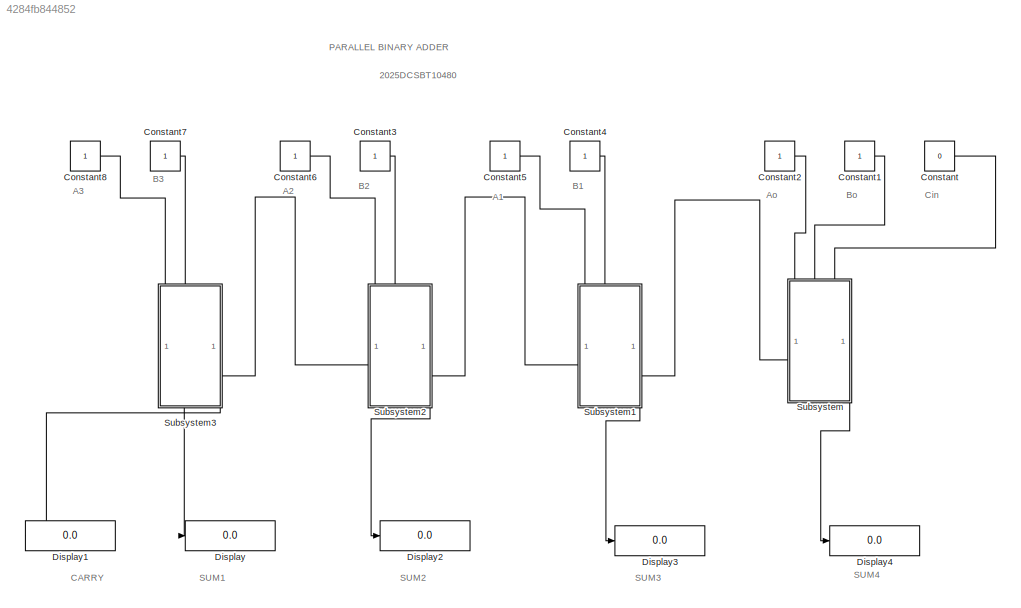
MODEL slx_4284fb844852
KIND model
CONFIG AbsTol = auto
CONFIG EnableMultiTasking = off
CONFIG FixedStep = auto
CONFIG MaxStep = auto
CONFIG MinStep = auto
CONFIG RelTol = 1e-3
CONFIG SampleTimeConstraint = Unconstrained
CONFIG SolverName = VariableStepAuto
CONFIG StartTime = 0.0
CONFIG StopTime = 10.0
BLOCK [Constant] Constant
  Value = 0
BLOCK [Constant] Constant1
BLOCK [Constant] Constant2
BLOCK [Constant] Constant3
BLOCK [Constant] Constant4
BLOCK [Constant] Constant5
BLOCK [Constant] Constant6
BLOCK [Constant] Constant7
BLOCK [Constant] Constant8
BLOCK [Display] Display
  Decimation = 1
BLOCK [Display] Display1
  Decimation = 1
BLOCK [Display] Display2
  Decimation = 1
BLOCK [Display] Display3
  Decimation = 1
BLOCK [Display] Display4
  Decimation = 1
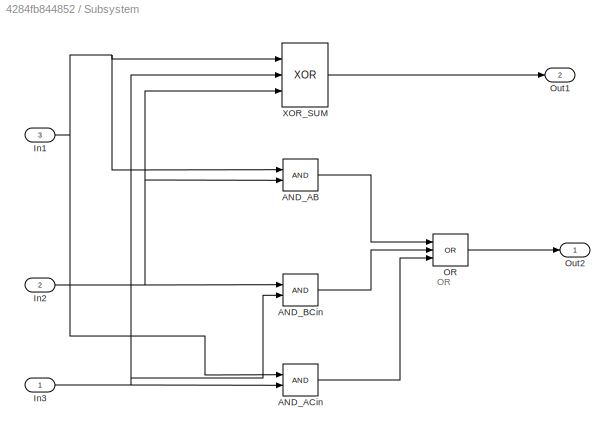
BLOCK [SubSystem] Subsystem
  PortSchema = {"entries":[{"content":{"sides":[{"content":{},"type":"ConnectorPlacement.EquallySpacedRectSide","uuid":"108d892a-8720-40a2-8c7e-3ae5f46a708e"},{"content":{"side":"RIGHT"},"type":"ConnectorPlacement.EquallySpacedRectSide","uuid":"3570579f-a2bf-462b-b3db-0cdd64646b39"},{"content":{"connectorIds":["In1","In2","In3"],"side":"TOP"},"type":"ConnectorPlacement.EquallySpacedRectSide","uuid":"4551d649-747...<+368ch>  <repeated x4 — deduplicated; at blocks: Subsystem, Subsystem1, Subsystem2, Subsystem3>
BLOCK [Logic] Subsystem/AND_AB 
  AllPortsSameDT = off
  IconShape = distinctive
  OutDataTypeStr = boolean
BLOCK [Logic] Subsystem/AND_ACin
  AllPortsSameDT = off
  IconShape = distinctive
  OutDataTypeStr = boolean
BLOCK [Logic] Subsystem/AND_BCin
  AllPortsSameDT = off
  IconShape = distinctive
  OutDataTypeStr = boolean
BLOCK [Inport] Subsystem/In1
  Port = 3
BLOCK [Inport] Subsystem/In2
  Port = 2
BLOCK [Inport] Subsystem/In3
BLOCK [Logic] Subsystem/OR
  AllPortsSameDT = off
  IconShape = distinctive
  Inputs = 3
  Operator = OR
  OutDataTypeStr = boolean
BLOCK [Outport] Subsystem/Out1
  Port = 2
BLOCK [Outport] Subsystem/Out2
BLOCK [Logic] Subsystem/XOR_SUM
  AllPortsSameDT = off
  IconShape = distinctive
  Inputs = 3
  Operator = XOR
  OutDataTypeStr = boolean
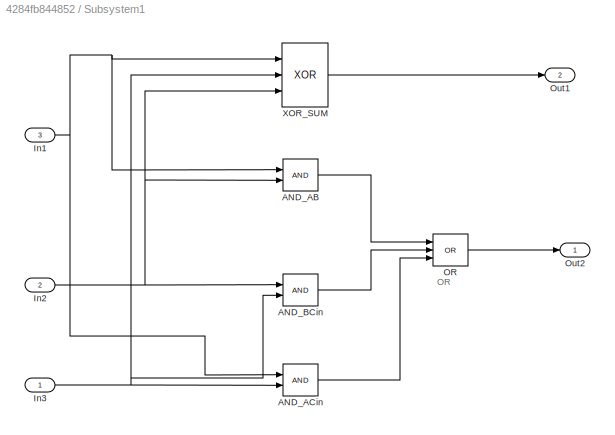
BLOCK [SubSystem] Subsystem1
BLOCK [Logic] Subsystem1/AND_AB 
  AllPortsSameDT = off
  IconShape = distinctive
  OutDataTypeStr = boolean
BLOCK [Logic] Subsystem1/AND_ACin
  AllPortsSameDT = off
  IconShape = distinctive
  OutDataTypeStr = boolean
BLOCK [Logic] Subsystem1/AND_BCin
  AllPortsSameDT = off
  IconShape = distinctive
  OutDataTypeStr = boolean
BLOCK [Inport] Subsystem1/In1
  Port = 3
BLOCK [Inport] Subsystem1/In2
  Port = 2
BLOCK [Inport] Subsystem1/In3
BLOCK [Logic] Subsystem1/OR
  AllPortsSameDT = off
  IconShape = distinctive
  Inputs = 3
  Operator = OR
  OutDataTypeStr = boolean
BLOCK [Outport] Subsystem1/Out1
  Port = 2
BLOCK [Outport] Subsystem1/Out2
BLOCK [Logic] Subsystem1/XOR_SUM
  AllPortsSameDT = off
  IconShape = distinctive
  Inputs = 3
  Operator = XOR
  OutDataTypeStr = boolean
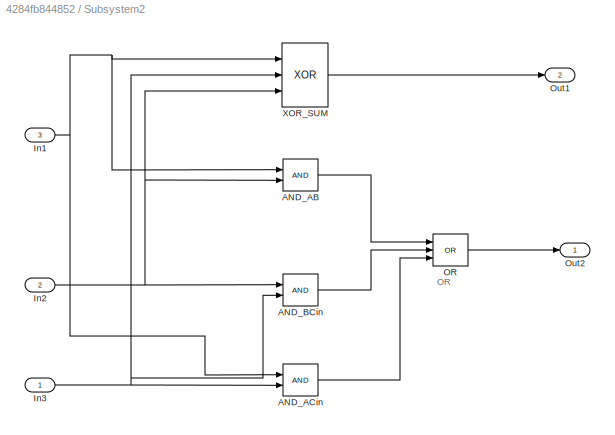
BLOCK [SubSystem] Subsystem2
BLOCK [Logic] Subsystem2/AND_AB 
  AllPortsSameDT = off
  IconShape = distinctive
  OutDataTypeStr = boolean
BLOCK [Logic] Subsystem2/AND_ACin
  AllPortsSameDT = off
  IconShape = distinctive
  OutDataTypeStr = boolean
BLOCK [Logic] Subsystem2/AND_BCin
  AllPortsSameDT = off
  IconShape = distinctive
  OutDataTypeStr = boolean
BLOCK [Inport] Subsystem2/In1
  Port = 3
BLOCK [Inport] Subsystem2/In2
  Port = 2
BLOCK [Inport] Subsystem2/In3
BLOCK [Logic] Subsystem2/OR
  AllPortsSameDT = off
  IconShape = distinctive
  Inputs = 3
  Operator = OR
  OutDataTypeStr = boolean
BLOCK [Outport] Subsystem2/Out1
  Port = 2
BLOCK [Outport] Subsystem2/Out2
BLOCK [Logic] Subsystem2/XOR_SUM
  AllPortsSameDT = off
  IconShape = distinctive
  Inputs = 3
  Operator = XOR
  OutDataTypeStr = boolean
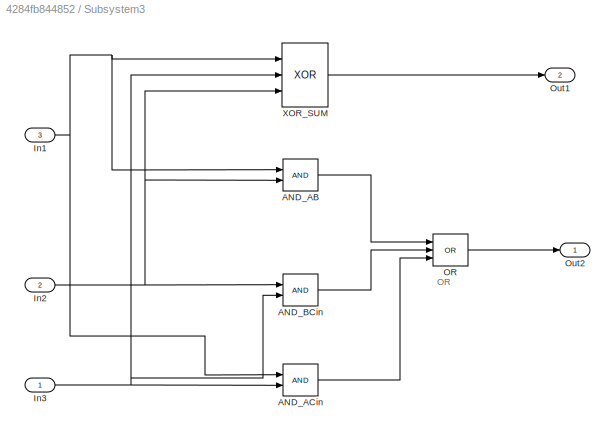
BLOCK [SubSystem] Subsystem3
BLOCK [Logic] Subsystem3/AND_AB 
  AllPortsSameDT = off
  IconShape = distinctive
  OutDataTypeStr = boolean
BLOCK [Logic] Subsystem3/AND_ACin
  AllPortsSameDT = off
  IconShape = distinctive
  OutDataTypeStr = boolean
BLOCK [Logic] Subsystem3/AND_BCin
  AllPortsSameDT = off
  IconShape = distinctive
  OutDataTypeStr = boolean
BLOCK [Inport] Subsystem3/In1
  Port = 3
BLOCK [Inport] Subsystem3/In2
  Port = 2
BLOCK [Inport] Subsystem3/In3
BLOCK [Logic] Subsystem3/OR
  AllPortsSameDT = off
  IconShape = distinctive
  Inputs = 3
  Operator = OR
  OutDataTypeStr = boolean
BLOCK [Outport] Subsystem3/Out1
  Port = 2
BLOCK [Outport] Subsystem3/Out2
BLOCK [Logic] Subsystem3/XOR_SUM
  AllPortsSameDT = off
  IconShape = distinctive
  Inputs = 3
  Operator = XOR
  OutDataTypeStr = boolean
ANNOTATION (root): PARALLEL BINARY ADDER
ANNOTATION (root): 2025DCSBT10480
ANNOTATION (root): A1
ANNOTATION (root): A2
ANNOTATION (root): A3
ANNOTATION (root): Ao
ANNOTATION (root): B1
ANNOTATION (root): B2
ANNOTATION (root): B3
ANNOTATION (root): Bo
ANNOTATION (root): CARRY
ANNOTATION (root): Cin
ANNOTATION (root): SUM1
ANNOTATION (root): SUM2
ANNOTATION (root): SUM3
ANNOTATION (root): SUM4
ANNOTATION Subsystem: OR
ANNOTATION Subsystem1: OR
ANNOTATION Subsystem2: OR
ANNOTATION Subsystem3: OR
LINE Constant1:1 -> Subsystem:2
LINE Constant2:1 -> Subsystem:1
LINE Constant3:1 -> Subsystem2:2
LINE Constant4:1 -> Subsystem1:2
LINE Constant5:1 -> Subsystem1:1
LINE Constant6:1 -> Subsystem2:1
LINE Constant7:1 -> Subsystem3:2
LINE Constant8:1 -> Subsystem3:1
LINE Constant:1 -> Subsystem:3
LINE Subsystem/AND_AB :1 -> Subsystem/OR:1
LINE Subsystem/AND_ACin:1 -> Subsystem/OR:3
LINE Subsystem/AND_BCin:1 -> Subsystem/OR:2
NET Subsystem/In1:1 -> Subsystem/AND_AB :1, Subsystem/AND_ACin:1, Subsystem/XOR_SUM:1
NET Subsystem/In2:1 -> Subsystem/AND_AB :2, Subsystem/AND_BCin:1, Subsystem/XOR_SUM:3
NET Subsystem/In3:1 -> Subsystem/AND_ACin:2, Subsystem/AND_BCin:2, Subsystem/XOR_SUM:2
LINE Subsystem/OR:1 -> Subsystem/Out2:1
LINE Subsystem/XOR_SUM:1 -> Subsystem/Out1:1
LINE Subsystem1/AND_AB :1 -> Subsystem1/OR:1
LINE Subsystem1/AND_ACin:1 -> Subsystem1/OR:3
LINE Subsystem1/AND_BCin:1 -> Subsystem1/OR:2
NET Subsystem1/In1:1 -> Subsystem1/AND_AB :1, Subsystem1/AND_ACin:1, Subsystem1/XOR_SUM:1
NET Subsystem1/In2:1 -> Subsystem1/AND_AB :2, Subsystem1/AND_BCin:1, Subsystem1/XOR_SUM:3
NET Subsystem1/In3:1 -> Subsystem1/AND_ACin:2, Subsystem1/AND_BCin:2, Subsystem1/XOR_SUM:2
LINE Subsystem1/OR:1 -> Subsystem1/Out2:1
LINE Subsystem1/XOR_SUM:1 -> Subsystem1/Out1:1
LINE Subsystem1:1 -> Subsystem2:3
LINE Subsystem1:2 -> Display3:1
LINE Subsystem2/AND_AB :1 -> Subsystem2/OR:1
LINE Subsystem2/AND_ACin:1 -> Subsystem2/OR:3
LINE Subsystem2/AND_BCin:1 -> Subsystem2/OR:2
NET Subsystem2/In1:1 -> Subsystem2/AND_AB :1, Subsystem2/AND_ACin:1, Subsystem2/XOR_SUM:1
NET Subsystem2/In2:1 -> Subsystem2/AND_AB :2, Subsystem2/AND_BCin:1, Subsystem2/XOR_SUM:3
NET Subsystem2/In3:1 -> Subsystem2/AND_ACin:2, Subsystem2/AND_BCin:2, Subsystem2/XOR_SUM:2
LINE Subsystem2/OR:1 -> Subsystem2/Out2:1
LINE Subsystem2/XOR_SUM:1 -> Subsystem2/Out1:1
LINE Subsystem2:1 -> Subsystem3:3
LINE Subsystem2:2 -> Display2:1
LINE Subsystem3/AND_AB :1 -> Subsystem3/OR:1
LINE Subsystem3/AND_ACin:1 -> Subsystem3/OR:3
LINE Subsystem3/AND_BCin:1 -> Subsystem3/OR:2
NET Subsystem3/In1:1 -> Subsystem3/AND_AB :1, Subsystem3/AND_ACin:1, Subsystem3/XOR_SUM:1
NET Subsystem3/In2:1 -> Subsystem3/AND_AB :2, Subsystem3/AND_BCin:1, Subsystem3/XOR_SUM:3
NET Subsystem3/In3:1 -> Subsystem3/AND_ACin:2, Subsystem3/AND_BCin:2, Subsystem3/XOR_SUM:2
LINE Subsystem3/OR:1 -> Subsystem3/Out2:1
LINE Subsystem3/XOR_SUM:1 -> Subsystem3/Out1:1
LINE Subsystem3:1 -> Display1:1
LINE Subsystem3:2 -> Display:1
LINE Subsystem:1 -> Subsystem1:3
LINE Subsystem:2 -> Display4:1
note: NET lines group one-source signal fan-out (src -> all destinations, sorted); 1:1 wires keep LINE
